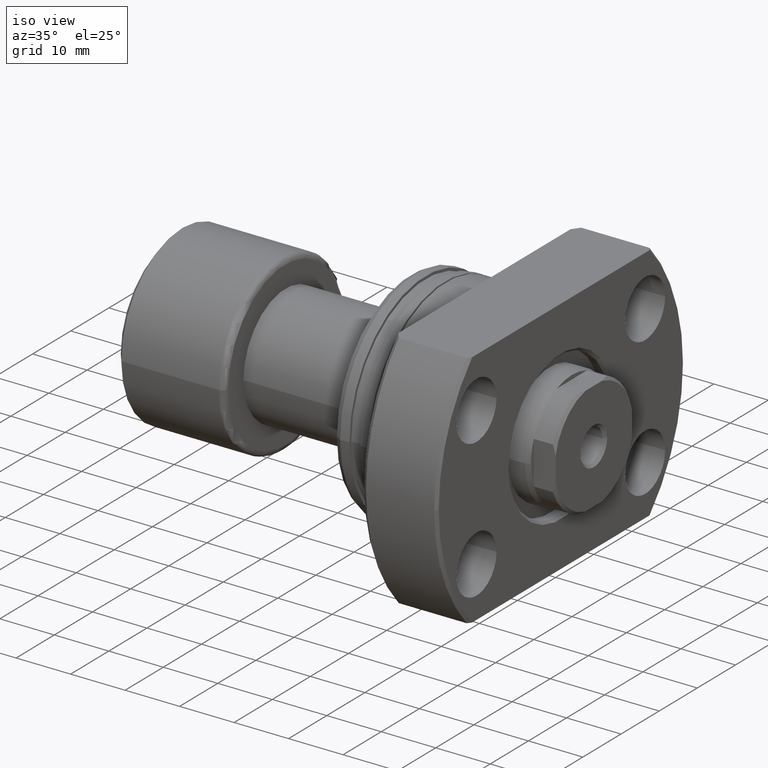
[diagram: clean part render]
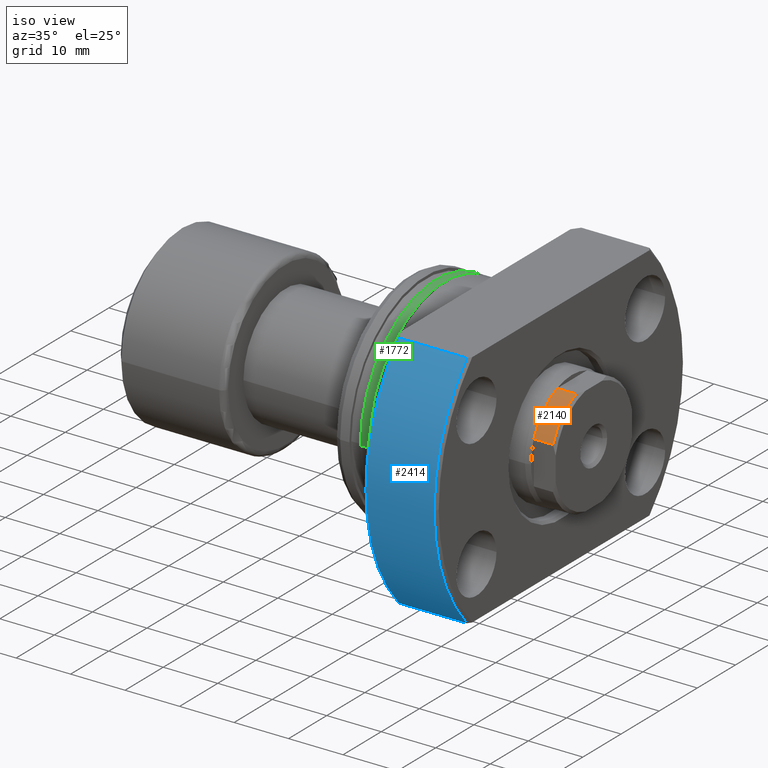
[diagram: same view with three faces highlighted in distinct colors, each labeled with its STEP entity id]
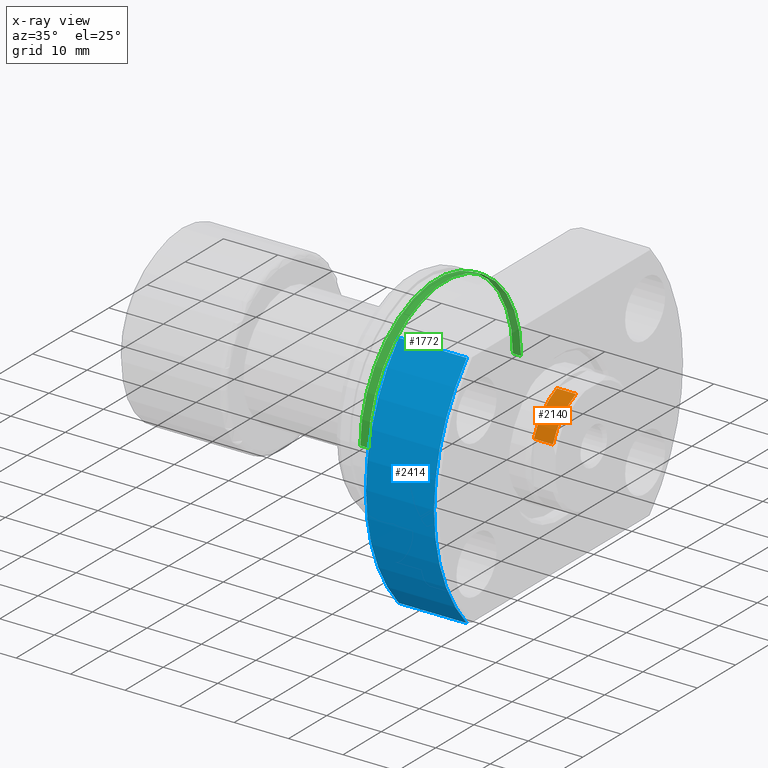
[diagram: x-ray of the same camera — body ghosted, the three highlighted faces saturated]
A machine part, iso view with three faces highlighted in distinct colors.
The next image is the same camera in x-ray (body ghosted, the three faces saturated) — at least one of them is partly hidden behind the body in this view.
Their STEP definitions:

[orange] entity #2140 — the highlighted cylindrical surface (partial cylindrical patch) has radius 10.75 mm, axis along (-1, -0, -0).
#111 = CARTESIAN_POINT ( 'NONE',  ( 0.000000000000000000, 0.000000000000000000, 0.000000000000000000 ) ) ;
#164 = VERTEX_POINT ( 'NONE', #2930 ) ;
#241 = CARTESIAN_POINT ( 'NONE',  ( 76.49999999999998579, -10.00000000000083311, 3.944933459517253382 ) ) ;
#255 = AXIS2_PLACEMENT_3D ( 'NONE', #2637, #656, #3108 ) ;
#397 = CARTESIAN_POINT ( 'NONE',  ( 72.99999999999992895, -3.944933459516260399, 10.00000000000043343 ) ) ;
#647 = DIRECTION ( 'NONE',  ( 1.069542322069065647E-17, -1.000000000000000000, 0.000000000000000000 ) ) ;
#655 = AXIS2_PLACEMENT_3D ( 'NONE', #111, #699, #647 ) ;
#656 = DIRECTION ( 'NONE',  ( -1.000000000000000000, -1.069542322069063027E-17, -0.000000000000000000 ) ) ;
#699 = DIRECTION ( 'NONE',  ( -1.000000000000000000, -1.069542322069065801E-17, -0.000000000000000000 ) ) ;
#770 = DIRECTION ( 'NONE',  ( 1.000000000000000000, -1.657264799492230625E-14, -0.000000000000000000 ) ) ;
#807 = EDGE_CURVE ( 'NONE', #1795, #164, #1029, .T. ) ;
#991 = EDGE_CURVE ( 'NONE', #164, #2726, #2620, .T. ) ;
#1029 = CIRCLE ( 'NONE', #2893, 10.75000000000000000 ) ;
#1030 = CARTESIAN_POINT ( 'NONE',  ( 73.00000000000014211, 7.807658951104196354E-16, 0.000000000000000000 ) ) ;
#1111 = EDGE_CURVE ( 'NONE', #1280, #2726, #2123, .T. ) ;
#1280 = VERTEX_POINT ( 'NONE', #241 ) ;
#1290 = VECTOR ( 'NONE', #1383, 1000.000000000000000 ) ;
#1339 = VECTOR ( 'NONE', #770, 1000.000000000000000 ) ;
#1383 = DIRECTION ( 'NONE',  ( 1.000000000000000000, -1.657264799492230625E-14, -0.000000000000000000 ) ) ;
#1455 = ORIENTED_EDGE ( 'NONE', *, *, #807, .F. ) ;
#1622 = ORIENTED_EDGE ( 'NONE', *, *, #1111, .T. ) ;
#1729 = CARTESIAN_POINT ( 'NONE',  ( 72.99999999999982947, -10.00000000000077627, 3.944933459517253382 ) ) ;
#1795 = VERTEX_POINT ( 'NONE', #1729 ) ;
#1928 = EDGE_CURVE ( 'NONE', #1795, #1280, #2287, .T. ) ;
#2123 = CIRCLE ( 'NONE', #255, 10.75000000000000000 ) ;
#2140 = ADVANCED_FACE ( 'NONE', ( #3143 ), #2329, .T. ) ;
#2287 = LINE ( 'NONE', #2313, #1339 ) ;
#2313 = CARTESIAN_POINT ( 'NONE',  ( 72.99999999999982947, -10.00000000000077627, 3.944933459517253382 ) ) ;
#2329 = CYLINDRICAL_SURFACE ( 'NONE', #655, 10.75000000000000000 ) ;
#2440 = EDGE_LOOP ( 'NONE', ( #3030, #1622, #2670, #1455 ) ) ;
#2544 = DIRECTION ( 'NONE',  ( -1.000000000000000000, -1.069542322069065801E-17, -0.000000000000000000 ) ) ;
#2620 = LINE ( 'NONE', #397, #1290 ) ;
#2637 = CARTESIAN_POINT ( 'NONE',  ( 76.49999999999998579, 8.181998763828351889E-16, 0.000000000000000000 ) ) ;
#2670 = ORIENTED_EDGE ( 'NONE', *, *, #991, .F. ) ;
#2726 = VERTEX_POINT ( 'NONE', #3006 ) ;
#2893 = AXIS2_PLACEMENT_3D ( 'NONE', #1030, #2544, #2995 ) ;
#2930 = CARTESIAN_POINT ( 'NONE',  ( 72.99999999999992895, -3.944933459516260399, 10.00000000000043343 ) ) ;
#2995 = DIRECTION ( 'NONE',  ( 0.000000000000000000, -1.000000000000000000, 0.000000000000000000 ) ) ;
#3006 = CARTESIAN_POINT ( 'NONE',  ( 76.49999999999998579, -3.944933459516318575, 10.00000000000043343 ) ) ;
#3030 = ORIENTED_EDGE ( 'NONE', *, *, #1928, .T. ) ;
#3108 = DIRECTION ( 'NONE',  ( 0.000000000000000000, -1.000000000000000000, 0.000000000000000000 ) ) ;
#3143 = FACE_OUTER_BOUND ( 'NONE', #2440, .T. ) ;

[blue] entity #2414 — the highlighted cylindrical surface (partial cylindrical patch) has radius 32.5 mm, axis along (1, 0, 0).
#92 = CIRCLE ( 'NONE', #2476, 32.49999999999991473 ) ;
#159 = AXIS2_PLACEMENT_3D ( 'NONE', #1421, #1615, #1888 ) ;
#210 = CARTESIAN_POINT ( 'NONE',  ( -1.623701173514291440E-12, -23.92174742781049090, 22.00000000000000711 ) ) ;
#214 = EDGE_CURVE ( 'NONE', #815, #2679, #453, .T. ) ;
#332 = ORIENTED_EDGE ( 'NONE', *, *, #1631, .F. ) ;
#453 = LINE ( 'NONE', #2239, #2526 ) ;
#475 = CARTESIAN_POINT ( 'NONE',  ( 27.00000000000007105, -23.92174742781127605, -22.00000000000000355 ) ) ;
#572 = EDGE_CURVE ( 'NONE', #2567, #2679, #92, .T. ) ;
#584 = FACE_OUTER_BOUND ( 'NONE', #981, .T. ) ;
#636 = DIRECTION ( 'NONE',  ( 0.000000000000000000, 1.000000000000000000, 0.000000000000000000 ) ) ;
#695 = ORIENTED_EDGE ( 'NONE', *, *, #572, .F. ) ;
#801 = CARTESIAN_POINT ( 'NONE',  ( 14.49999999999999289, -23.92174742781091368, -22.00000000000000355 ) ) ;
#815 = VERTEX_POINT ( 'NONE', #801 ) ;
#962 = VERTEX_POINT ( 'NONE', #1860 ) ;
#981 = EDGE_LOOP ( 'NONE', ( #2861, #1513, #2154, #695, #332 ) ) ;
#1196 = CIRCLE ( 'NONE', #159, 32.49999999999991473 ) ;
#1421 = CARTESIAN_POINT ( 'NONE',  ( 14.49999999999999289, 1.937168573196720858E-16, 0.000000000000000000 ) ) ;
#1430 = DIRECTION ( 'NONE',  ( 1.000000000000000000, 1.335978326342566810E-17, -0.000000000000000000 ) ) ;
#1434 = LINE ( 'NONE', #210, #3118 ) ;
#1486 = AXIS2_PLACEMENT_3D ( 'NONE', #1659, #3103, #636 ) ;
#1513 = ORIENTED_EDGE ( 'NONE', *, *, #3096, .T. ) ;
#1581 = CYLINDRICAL_SURFACE ( 'NONE', #1608, 32.49999999999991473 ) ;
#1608 = AXIS2_PLACEMENT_3D ( 'NONE', #1813, #2040, #2351 ) ;
#1615 = DIRECTION ( 'NONE',  ( 1.000000000000000000, 1.335978326342566810E-17, -0.000000000000000000 ) ) ;
#1631 = EDGE_CURVE ( 'NONE', #1687, #2567, #1823, .T. ) ;
#1659 = CARTESIAN_POINT ( 'NONE',  ( 27.00000000000008527, 3.607141481124941789E-16, 0.000000000000000000 ) ) ;
#1677 = CARTESIAN_POINT ( 'NONE',  ( 27.00000000000008527, 3.607141481124941789E-16, 0.000000000000000000 ) ) ;
#1687 = VERTEX_POINT ( 'NONE', #2152 ) ;
#1813 = CARTESIAN_POINT ( 'NONE',  ( 27.50000000000000355, 3.673940397442059375E-16, 0.000000000000000000 ) ) ;
#1823 = CIRCLE ( 'NONE', #1486, 32.49999999999991473 ) ;
#1860 = CARTESIAN_POINT ( 'NONE',  ( 14.49999999999999289, -23.92174742781091012, 22.00000000000000711 ) ) ;
#1888 = DIRECTION ( 'NONE',  ( 0.000000000000000000, 1.000000000000000000, 0.000000000000000000 ) ) ;
#1960 = DIRECTION ( 'NONE',  ( 0.000000000000000000, 1.000000000000000000, 0.000000000000000000 ) ) ;
#2040 = DIRECTION ( 'NONE',  ( 1.000000000000000000, 1.335978326342566810E-17, -0.000000000000000000 ) ) ;
#2152 = CARTESIAN_POINT ( 'NONE',  ( 27.00000000000007105, -23.92174742781127250, 22.00000000000000711 ) ) ;
#2154 = ORIENTED_EDGE ( 'NONE', *, *, #214, .T. ) ;
#2239 = CARTESIAN_POINT ( 'NONE',  ( -1.623701173514291440E-12, -23.92174742781049446, -22.00000000000000355 ) ) ;
#2351 = DIRECTION ( 'NONE',  ( 0.000000000000000000, 1.000000000000000000, 0.000000000000000000 ) ) ;
#2414 = ADVANCED_FACE ( 'NONE', ( #584 ), #1581, .T. ) ;
#2476 = AXIS2_PLACEMENT_3D ( 'NONE', #1677, #1430, #1960 ) ;
#2526 = VECTOR ( 'NONE', #2693, 1000.000000000000000 ) ;
#2567 = VERTEX_POINT ( 'NONE', #2680 ) ;
#2679 = VERTEX_POINT ( 'NONE', #475 ) ;
#2680 = CARTESIAN_POINT ( 'NONE',  ( 27.00000000000008527, -32.49999999999991473, 0.000000000000000000 ) ) ;
#2691 = DIRECTION ( 'NONE',  ( 1.000000000000000000, -2.886466111666351885E-14, -0.000000000000000000 ) ) ;
#2693 = DIRECTION ( 'NONE',  ( 1.000000000000000000, -2.886466111666351885E-14, -0.000000000000000000 ) ) ;
#2861 = ORIENTED_EDGE ( 'NONE', *, *, #3153, .F. ) ;
#3096 = EDGE_CURVE ( 'NONE', #962, #815, #1196, .T. ) ;
#3103 = DIRECTION ( 'NONE',  ( 1.000000000000000000, 1.335978326342566810E-17, -0.000000000000000000 ) ) ;
#3118 = VECTOR ( 'NONE', #2691, 1000.000000000000000 ) ;
#3153 = EDGE_CURVE ( 'NONE', #962, #1687, #1434, .T. ) ;

[green] entity #1772 — the highlighted cylindrical surface (partial cylindrical patch) has radius 20 mm, axis along (1, 0, 0).
#28 = CARTESIAN_POINT ( 'NONE',  ( 27.50000000000000355, -19.99999999999999645, 2.449293598294706119E-15 ) ) ;
#29 = EDGE_CURVE ( 'NONE', #548, #529, #2144, .T. ) ;
#179 = ORIENTED_EDGE ( 'NONE', *, *, #1832, .T. ) ;
#201 = CIRCLE ( 'NONE', #1236, 19.99999999999999645 ) ;
#257 = CARTESIAN_POINT ( 'NONE',  ( 27.50000000000000355, 3.673940397442059375E-16, 0.000000000000000000 ) ) ;
#275 = CARTESIAN_POINT ( 'NONE',  ( 6.200000000001034905, -19.99999999999999645, 2.449293598294706119E-15 ) ) ;
#403 = DIRECTION ( 'NONE',  ( 0.000000000000000000, 1.000000000000000000, 0.000000000000000000 ) ) ;
#406 = VERTEX_POINT ( 'NONE', #275 ) ;
#418 = VERTEX_POINT ( 'NONE', #753 ) ;
#501 = DIRECTION ( 'NONE',  ( 1.000000000000000000, 1.335978326342566810E-17, -0.000000000000000000 ) ) ;
#529 = VERTEX_POINT ( 'NONE', #1131 ) ;
#548 = VERTEX_POINT ( 'NONE', #701 ) ;
#701 = CARTESIAN_POINT ( 'NONE',  ( 4.699999999998548894, 19.99999999999999645, 0.000000000000000000 ) ) ;
#753 = CARTESIAN_POINT ( 'NONE',  ( 4.699999999998548894, -19.99999999999999645, 2.449293598294706119E-15 ) ) ;
#897 = ORIENTED_EDGE ( 'NONE', *, *, #2989, .F. ) ;
#1131 = CARTESIAN_POINT ( 'NONE',  ( 6.200000000001034905, 19.99999999999999645, 0.000000000000000000 ) ) ;
#1179 = DIRECTION ( 'NONE',  ( 1.000000000000000000, 1.335978326342566810E-17, -0.000000000000000000 ) ) ;
#1236 = AXIS2_PLACEMENT_3D ( 'NONE', #1420, #2238, #3196 ) ;
#1420 = CARTESIAN_POINT ( 'NONE',  ( 4.699999999998548894, 6.279098133808125197E-17, 0.000000000000000000 ) ) ;
#1500 = AXIS2_PLACEMENT_3D ( 'NONE', #2625, #2611, #403 ) ;
#1555 = ORIENTED_EDGE ( 'NONE', *, *, #29, .F. ) ;
#1565 = ORIENTED_EDGE ( 'NONE', *, *, #2198, .T. ) ;
#1629 = CARTESIAN_POINT ( 'NONE',  ( 27.50000000000000355, 19.99999999999999645, 0.000000000000000000 ) ) ;
#1715 = VECTOR ( 'NONE', #501, 1000.000000000000000 ) ;
#1772 = ADVANCED_FACE ( 'NONE', ( #1981 ), #2187, .T. ) ;
#1832 = EDGE_CURVE ( 'NONE', #548, #418, #201, .T. ) ;
#1976 = CIRCLE ( 'NONE', #1500, 19.99999999999999645 ) ;
#1981 = FACE_OUTER_BOUND ( 'NONE', #2405, .T. ) ;
#1997 = DIRECTION ( 'NONE',  ( 0.000000000000000000, 1.000000000000000000, 0.000000000000000000 ) ) ;
#2144 = LINE ( 'NONE', #1629, #2471 ) ;
#2165 = AXIS2_PLACEMENT_3D ( 'NONE', #257, #1179, #1997 ) ;
#2187 = CYLINDRICAL_SURFACE ( 'NONE', #2165, 19.99999999999999645 ) ;
#2198 = EDGE_CURVE ( 'NONE', #418, #406, #2990, .T. ) ;
#2238 = DIRECTION ( 'NONE',  ( 1.000000000000000000, 1.335978326342566810E-17, -0.000000000000000000 ) ) ;
#2405 = EDGE_LOOP ( 'NONE', ( #179, #1565, #897, #1555 ) ) ;
#2471 = VECTOR ( 'NONE', #3126, 1000.000000000000000 ) ;
#2611 = DIRECTION ( 'NONE',  ( 1.000000000000000000, 1.335978326342566810E-17, -0.000000000000000000 ) ) ;
#2625 = CARTESIAN_POINT ( 'NONE',  ( 6.200000000001034905, 8.283065623325293867E-17, 0.000000000000000000 ) ) ;
#2989 = EDGE_CURVE ( 'NONE', #529, #406, #1976, .T. ) ;
#2990 = LINE ( 'NONE', #28, #1715 ) ;
#3126 = DIRECTION ( 'NONE',  ( 1.000000000000000000, 1.335978326342566810E-17, -0.000000000000000000 ) ) ;
#3196 = DIRECTION ( 'NONE',  ( 0.000000000000000000, 1.000000000000000000, 0.000000000000000000 ) ) ;